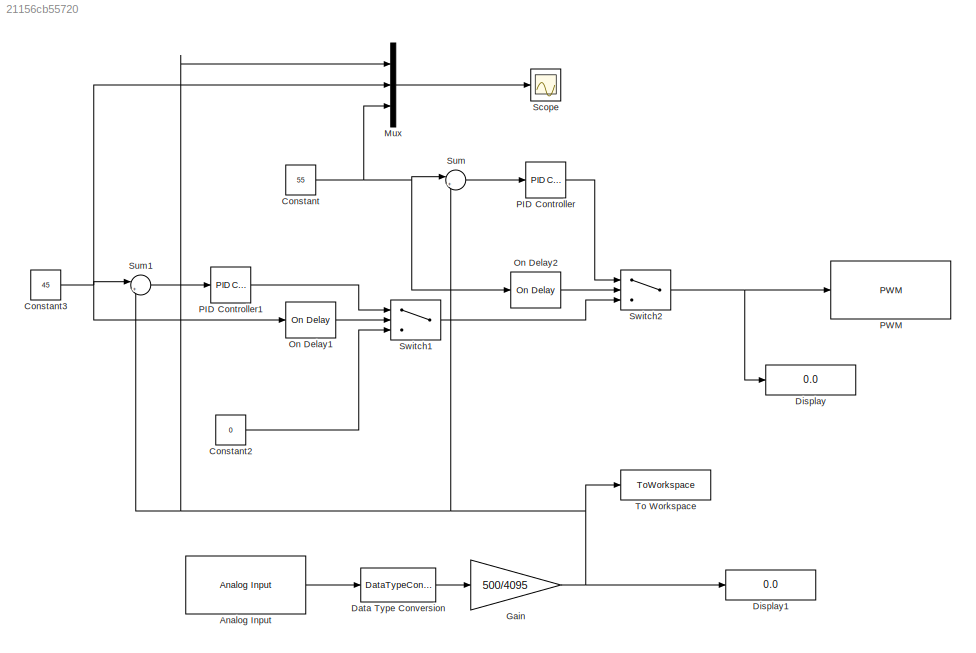
MODEL slx_21156cb55720
KIND model
CONFIG AbsTol = auto
CONFIG EnableMultiTasking = off
CONFIG FixedStep = auto
CONFIG MaxStep = auto
CONFIG MinStep = auto
CONFIG RelTol = 1e-3
CONFIG SampleTimeConstraint = Unconstrained
CONFIG SolverName = FixedStepAuto
CONFIG StartTime = 0.0
CONFIG StopTime = 300
BLOCK [Reference] Analog Input  REF=arduinolib/Analog Input
  Ports = [0, 1]
  SourceBlock = arduinolib/Analog Input
  SourceProductBaseCode = ARDUINO
  SourceType = Arduino Analog Input
BLOCK [Constant] Constant
  Value = 55
BLOCK [Constant] Constant2
  Value = 0
BLOCK [Constant] Constant3
  Value = 45
BLOCK [DataTypeConversion] Data Type Conversion
  OutDataTypeStr = double
  RndMeth = Floor
  SaturateOnIntegerOverflow = off
BLOCK [Display] Display
  Decimation = 1
  Ports = [1]
BLOCK [Display] Display1
  Decimation = 1
  Ports = [1]
BLOCK [Gain] Gain
  Gain = 500/4095
BLOCK [Mux] Mux
  DisplayOption = bar
  Inputs = 3
  Ports = [3, 1]
BLOCK [Reference] On Delay1  REF=spsOnDelayLib/On Delay
  Ports = [1, 1]
  SourceBlock = spsOnDelayLib/On Delay
  SourceProductBaseCode = PS
  SourceType = On/Off Delay
BLOCK [Reference] On Delay2  REF=spsOnDelayLib/On Delay
  Ports = [1, 1]
  SourceBlock = spsOnDelayLib/On Delay
  SourceProductBaseCode = PS
  SourceType = On/Off Delay
BLOCK [Reference] PID Controller  REF=slpidlib/PID Controller
  Ports = [1, 1]
  SourceBlock = slpidlib/PID Controller
  SourceProductBaseCode = SL
  SourceType = PID 1dof
BLOCK [Reference] PID Controller1  REF=slpidlib/PID Controller
  Ports = [1, 1]
  SourceBlock = slpidlib/PID Controller
  SourceProductBaseCode = SL
  SourceType = PID 1dof
BLOCK [Reference] PWM  REF=arduinolib/PWM
  Ports = [1]
  SourceBlock = arduinolib/PWM
  SourceProductBaseCode = ARDUINO
  SourceType = Arduino PWM
BLOCK [Scope] Scope
  Floating = off
  NumInputPorts = 1
  Ports = [1]
  ScopeSpecificationString = Simulink.scopes.TimeScopeBlockCfg('CurrentConfiguration', extmgr.ConfigurationSet(extmgr.Configuration('Core','General UI',true,'FigureColor',[1 1 1]),extmgr.Configuration('Core','Source UI',true),extmgr.Configuration('Sources','WiredSimulink',true),extmgr.Configuration('Visuals','Time Domain',true,'SerializedDisplays',{struct('MinYLimReal','10','MaxYLimReal','100','YLabelReal','','MinYLimMag','0'...<+1478ch>
BLOCK [Sum] Sum
  Inputs = |+-
  Ports = [2, 1]
BLOCK [Sum] Sum1
  Inputs = |+-
  Ports = [2, 1]
BLOCK [Switch] Switch1
  Criteria = u2 > Threshold
  InputSameDT = off
  SaturateOnIntegerOverflow = off
BLOCK [Switch] Switch2
  Criteria = u2 > Threshold
  InputSameDT = off
  SaturateOnIntegerOverflow = off
BLOCK [ToWorkspace] To Workspace
  FixptAsFi = on
  MaxDataPoints = inf
  Ports = [1]
  SampleTime = -1
  Save2DSignal = 2-D array (concatenate along first dimension)
  VariableName = Quy_Trinh_CN
LINE Analog Input:1 -> Data Type Conversion:1
LINE Constant2:1 -> Switch1:3
NET Constant3:1 -> Mux:2, On Delay1:1, Sum1:1
NET Constant:1 -> Mux:3, On Delay2:1, Sum:1
LINE Data Type Conversion:1 -> Gain:1
NET Gain:1 -> Display1:1, Mux:1, Sum1:2, Sum:2, To Workspace:1
LINE Mux:1 -> Scope:1
LINE On Delay1:1 -> Switch1:2
LINE On Delay2:1 -> Switch2:2
LINE PID Controller1:1 -> Switch1:1
LINE PID Controller:1 -> Switch2:1
LINE Sum1:1 -> PID Controller1:1
LINE Sum:1 -> PID Controller:1
LINE Switch1:1 -> Switch2:3
NET Switch2:1 -> Display:1, PWM:1
note: NET lines group one-source signal fan-out (src -> all destinations, sorted); 1:1 wires keep LINE
